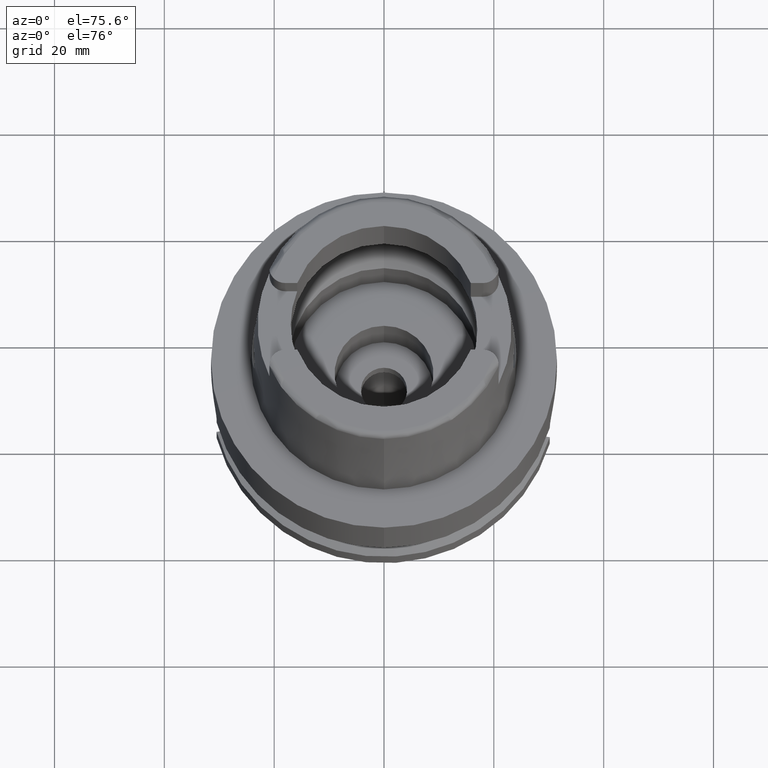
[diagram: clean part render]
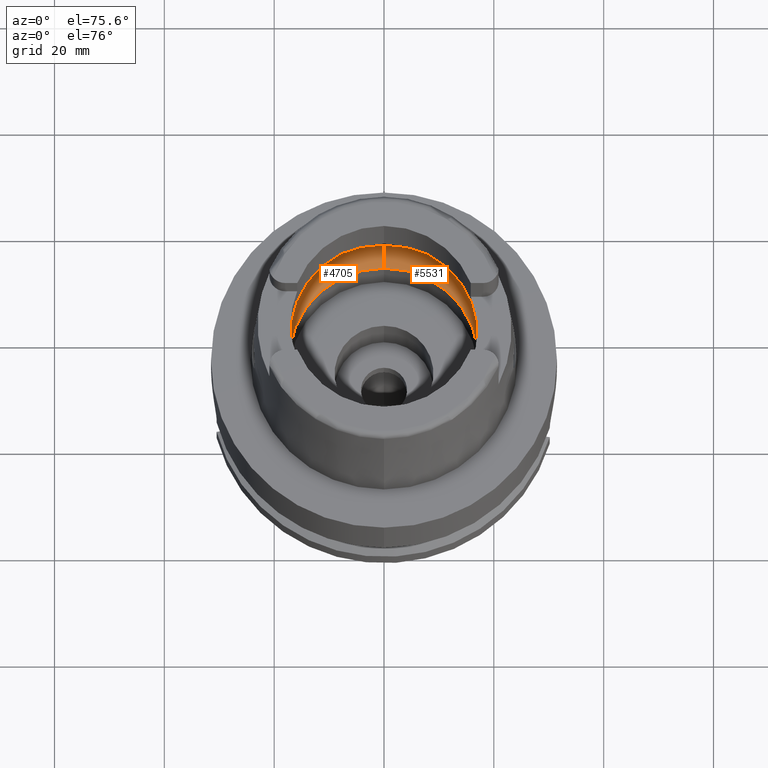
[diagram: same view with one multi-face feature highlighted, each face labeled with its STEP entity id]
A machine part, auxiliary view. The highlighted faces form ONE feature: a constant-radius fillet chain: 2 tangent blend faces with common blend radius 8 mm. The faces share edges in the B-rep.
Their STEP definitions:
[1] entity #4705 (Torus):
#5 = ORIENTED_EDGE ( 'NONE', *, *, #3868, .F. ) ;
#110 = CARTESIAN_POINT ( 'NONE',  ( -19.94340255865083833, 0.4848947565498933909, 5.274596189388688572 ) ) ;
#130 = VERTEX_POINT ( 'NONE', #4777 ) ;
#217 = CARTESIAN_POINT ( 'NONE',  ( -19.84575864665999845, -2.479085262491000030, 6.186348233825000875 ) ) ;
#272 = CARTESIAN_POINT ( 'NONE',  ( 0.0000000000000000000, 17.25000000000000000, 0.1500000000000999700 ) ) ;
#286 = AXIS2_PLACEMENT_3D ( 'NONE', #5358, #3645, #588 ) ;
#293 = CARTESIAN_POINT ( 'NONE',  ( -19.84575864665999845, -2.479085262491000030, 6.186348233825000875 ) ) ;
#301 = CARTESIAN_POINT ( 'NONE',  ( -19.92208718948823076, -1.429900174883156350, 5.533077591732342704 ) ) ;
#327 = ORIENTED_EDGE ( 'NONE', *, *, #2806, .F. ) ;
#383 = CIRCLE ( 'NONE', #4583, 7.999999999999992895 ) ;
#430 = DIRECTION ( 'NONE',  ( 1.000000000000000000, 0.0000000000000000000, 0.0000000000000000000 ) ) ;
#453 = AXIS2_PLACEMENT_3D ( 'NONE', #4826, #430, #4379 ) ;
#500 = CARTESIAN_POINT ( 'NONE',  ( -19.88332346670495809, 2.178368557155442531, 5.921389235933154360 ) ) ;
#526 = CARTESIAN_POINT ( 'NONE',  ( -19.93655272268687639, 0.9259470818443067408, 5.364515645285496959 ) ) ;
#588 = DIRECTION ( 'NONE',  ( 0.0000000000000000000, 1.000000000000000000, 0.0000000000000000000 ) ) ;
#591 = CARTESIAN_POINT ( 'NONE',  ( -19.94501428475999916, 0.0000000000000000000, 5.250000000000000000 ) ) ;
#632 = B_SPLINE_CURVE_WITH_KNOTS ( 'NONE', 3,
 ( #217, #1971, #3704, #5067, #4594, #2826, #4622, #301, #4648, #1994, #5094, #2405, #4171, #3759, #1584 ),
 .UNSPECIFIED., .F., .F.,
 ( 4, 2, 2, 1, 1, 1, 2, 2, 4 ),
 ( 0.0000000000000000000, 0.2499999999999957812, 0.3749999999999935607, 0.4374999999999926725, 0.4687499999999921729, 0.4843749999999920064, 0.4921874999999919509, 0.4999999999999920064, 1.000000000000000000 ),
 .UNSPECIFIED. ) ;
#640 = FACE_OUTER_BOUND ( 'NONE', #997, .T. ) ;
#651 = CARTESIAN_POINT ( 'NONE',  ( 0.0000000000000000000, -12.00000000000000000, 6.186348233825000875 ) ) ;
#703 = EDGE_CURVE ( 'NONE', #1993, #130, #383, .T. ) ;
#740 = CIRCLE ( 'NONE', #453, 7.999999999999992895 ) ;
#778 = CARTESIAN_POINT ( 'NONE',  ( 0.0000000000000000000, 0.0000000000000000000, 6.186348233825000875 ) ) ;
#993 = CARTESIAN_POINT ( 'NONE',  ( -19.84575864665999845, 2.479085262489999941, 6.186348233825000875 ) ) ;
#997 = EDGE_LOOP ( 'NONE', ( #1836, #2245, #327, #3734, #5, #1362, #5246 ) ) ;
#1056 = CARTESIAN_POINT ( 'NONE',  ( -19.92840595086944688, 1.244192535815689116, 5.462252019518305524 ) ) ;
#1177 = DIRECTION ( 'NONE',  ( 0.0000000000000000000, 0.0000000000000000000, 1.000000000000000000 ) ) ;
#1362 = ORIENTED_EDGE ( 'NONE', *, *, #5563, .F. ) ;
#1385 = CIRCLE ( 'NONE', #2648, 20.00000000000001421 ) ;
#1419 = CARTESIAN_POINT ( 'NONE',  ( -19.92591906827003001, 1.321585501799986462, 5.490587994735173893 ) ) ;
#1584 = CARTESIAN_POINT ( 'NONE',  ( -19.94501428475999916, 0.0000000000000000000, 5.250000000000000000 ) ) ;
#1742 = CARTESIAN_POINT ( 'NONE',  ( 0.0000000000000000000, 20.00000000000000000, 6.186348233825000875 ) ) ;
#1836 = ORIENTED_EDGE ( 'NONE', *, *, #5118, .F. ) ;
#1886 = CARTESIAN_POINT ( 'NONE',  ( -19.93856738032333809, 0.8183990517462441661, 5.338642722792194206 ) ) ;
#1971 = CARTESIAN_POINT ( 'NONE',  ( -19.86454009060478398, -2.328734643576319652, 6.053875549024845704 ) ) ;
#1993 = VERTEX_POINT ( 'NONE', #3265 ) ;
#1994 = CARTESIAN_POINT ( 'NONE',  ( -19.92467852483092017, -1.357963622241911139, 5.504503570019525505 ) ) ;
#2005 = CARTESIAN_POINT ( 'NONE',  ( -19.84575864665999845, 2.479085262489999941, 6.186348233825000875 ) ) ;
#2116 = EDGE_CURVE ( 'NONE', #2798, #2685, #632, .T. ) ;
#2245 = ORIENTED_EDGE ( 'NONE', *, *, #703, .F. ) ;
#2315 = DIRECTION ( 'NONE',  ( -0.9922879323327794543, 0.1239542631244973381, 0.0000000000000000000 ) ) ;
#2331 = CARTESIAN_POINT ( 'NONE',  ( -19.92706179647762355, 1.286754988675302247, 5.477635449957110048 ) ) ;
#2405 = CARTESIAN_POINT ( 'NONE',  ( -19.92547252417883641, -1.334867513091082314, 5.495621353218018257 ) ) ;
#2465 = AXIS2_PLACEMENT_3D ( 'NONE', #778, #2869, #4574 ) ;
#2648 = AXIS2_PLACEMENT_3D ( 'NONE', #4501, #4042, #2315 ) ;
#2685 = VERTEX_POINT ( 'NONE', #3341 ) ;
#2798 = VERTEX_POINT ( 'NONE', #293 ) ;
#2806 = EDGE_CURVE ( 'NONE', #4703, #1993, #2815, .T. ) ;
#2815 = CIRCLE ( 'NONE', #3091, 17.25000000000000000 ) ;
#2826 = CARTESIAN_POINT ( 'NONE',  ( -19.91448717745985775, -1.610408095139941542, 5.612876396282293179 ) ) ;
#2869 = DIRECTION ( 'NONE',  ( 0.0000000000000000000, 0.0000000000000000000, -1.000000000000000000 ) ) ;
#2877 = EDGE_CURVE ( 'NONE', #4703, #4343, #740, .T. ) ;
#3091 = AXIS2_PLACEMENT_3D ( 'NONE', #4189, #1177, #3720 ) ;
#3171 = B_SPLINE_CURVE_WITH_KNOTS ( 'NONE', 3,
 ( #591, #4025, #110, #1886, #526, #4902, #4433, #1056, #2331, #3218, #3592, #1419, #3185, #500, #993 ),
 .UNSPECIFIED., .F., .F.,
 ( 4, 2, 2, 1, 1, 1, 2, 2, 4 ),
 ( 0.0000000000000000000, 0.2499999999999942268, 0.3749999999999913958, 0.4374999999999900635, 0.4687499999999894529, 0.4843749999999892863, 0.4921874999999892308, 0.4999999999999892308, 1.000000000000000000 ),
 .UNSPECIFIED. ) ;
#3185 = CARTESIAN_POINT ( 'NONE',  ( -19.90996177496829489, 1.795767083468379210, 5.670284047755099088 ) ) ;
#3218 = CARTESIAN_POINT ( 'NONE',  ( -19.92647156474819425, 1.304855687904770578, 5.484336066838738866 ) ) ;
#3265 = CARTESIAN_POINT ( 'NONE',  ( 0.0000000000000000000, -17.25000000000000000, 0.1500000000000999700 ) ) ;
#3341 = CARTESIAN_POINT ( 'NONE',  ( -19.94501428475999916, 0.0000000000000000000, 5.250000000000000000 ) ) ;
#3580 = TOROIDAL_SURFACE ( 'NONE', #286, 12.00000000000000000, 8.000000000000000000 ) ;
#3592 = CARTESIAN_POINT ( 'NONE',  ( -19.92607492902601507, 1.316891584246879576, 5.488826718527257675 ) ) ;
#3645 = DIRECTION ( 'NONE',  ( 0.0000000000000000000, 0.0000000000000000000, 1.000000000000000000 ) ) ;
#3704 = CARTESIAN_POINT ( 'NONE',  ( -19.88059042415784816, -2.158397635262351066, 5.925190505596781065 ) ) ;
#3720 = DIRECTION ( 'NONE',  ( 0.0000000000000000000, 1.000000000000000000, 0.0000000000000000000 ) ) ;
#3734 = ORIENTED_EDGE ( 'NONE', *, *, #2877, .T. ) ;
#3759 = CARTESIAN_POINT ( 'NONE',  ( -19.94501428475999916, -0.4959087842382808309, 5.249999999999998224 ) ) ;
#3868 = EDGE_CURVE ( 'NONE', #4308, #4343, #1385, .T. ) ;
#3937 = CIRCLE ( 'NONE', #2465, 20.00000000000000000 ) ;
#4025 = CARTESIAN_POINT ( 'NONE',  ( -19.94501428475999916, 0.2479290550739760568, 5.249999999999999112 ) ) ;
#4042 = DIRECTION ( 'NONE',  ( 0.0000000000000000000, 0.0000000000000000000, -1.000000000000000000 ) ) ;
#4063 = DIRECTION ( 'NONE',  ( 0.0000000000000000000, -0.6562500000000006661, -0.7545435292281016393 ) ) ;
#4171 = CARTESIAN_POINT ( 'NONE',  ( -19.93856751838270824, -0.9457802407118157673, 5.348172554885747054 ) ) ;
#4189 = CARTESIAN_POINT ( 'NONE',  ( 0.0000000000000000000, 0.0000000000000000000, 0.1500000000000999700 ) ) ;
#4308 = VERTEX_POINT ( 'NONE', #2005 ) ;
#4343 = VERTEX_POINT ( 'NONE', #1742 ) ;
#4379 = DIRECTION ( 'NONE',  ( 0.0000000000000000000, 0.6562500000000006661, -0.7545435292281016393 ) ) ;
#4433 = CARTESIAN_POINT ( 'NONE',  ( -19.93096204774570879, 1.157762075072081620, 5.432521242665883321 ) ) ;
#4501 = CARTESIAN_POINT ( 'NONE',  ( 0.0000000000000000000, 0.0000000000000000000, 6.186348233825000875 ) ) ;
#4521 = DIRECTION ( 'NONE',  ( -1.000000000000000000, 0.0000000000000000000, 0.0000000000000000000 ) ) ;
#4574 = DIRECTION ( 'NONE',  ( 0.0000000000000000000, -1.000000000000000000, 0.0000000000000000000 ) ) ;
#4583 = AXIS2_PLACEMENT_3D ( 'NONE', #651, #4521, #4063 ) ;
#4594 = CARTESIAN_POINT ( 'NONE',  ( -19.90654609288262122, -1.769936306168619966, 5.691842260241858575 ) ) ;
#4622 = CARTESIAN_POINT ( 'NONE',  ( -19.91820167814924503, -1.528670811425639542, 5.574773783465068355 ) ) ;
#4648 = CARTESIAN_POINT ( 'NONE',  ( -19.92391792695806529, -1.379670552742549017, 5.512962522875360705 ) ) ;
#4703 = VERTEX_POINT ( 'NONE', #272 ) ;
#4705 = ADVANCED_FACE ( 'NONE', ( #640 ), #3580, .F. ) ;
#4777 = CARTESIAN_POINT ( 'NONE',  ( 0.0000000000000000000, -20.00000000000000000, 6.186348233825000875 ) ) ;
#4826 = CARTESIAN_POINT ( 'NONE',  ( 0.0000000000000000000, 12.00000000000000000, 6.186348233825000875 ) ) ;
#4902 = CARTESIAN_POINT ( 'NONE',  ( -19.93292633894125032, 1.081457122330341747, 5.408919853929954336 ) ) ;
#5067 = CARTESIAN_POINT ( 'NONE',  ( -19.90056925889987127, -1.871018165099524122, 5.748162139564427342 ) ) ;
#5094 = CARTESIAN_POINT ( 'NONE',  ( -19.92518025587951058, -1.343452463015866627, 5.498900748199903710 ) ) ;
#5118 = EDGE_CURVE ( 'NONE', #130, #2798, #3937, .T. ) ;
#5246 = ORIENTED_EDGE ( 'NONE', *, *, #2116, .F. ) ;
#5358 = CARTESIAN_POINT ( 'NONE',  ( 0.0000000000000000000, 0.0000000000000000000, 6.186348233825000875 ) ) ;
#5563 = EDGE_CURVE ( 'NONE', #2685, #4308, #3171, .T. ) ;
[2] entity #5531 (Torus):
#130 = VERTEX_POINT ( 'NONE', #4777 ) ;
#160 = CARTESIAN_POINT ( 'NONE',  ( 19.92518041982365418, 1.343450277255565872, 5.498899909475031045 ) ) ;
#272 = CARTESIAN_POINT ( 'NONE',  ( 0.0000000000000000000, 17.25000000000000000, 0.1500000000000999700 ) ) ;
#303 = CARTESIAN_POINT ( 'NONE',  ( 19.90996156375606674, -1.795769246985481571, 5.670285195732481576 ) ) ;
#383 = CIRCLE ( 'NONE', #4583, 7.999999999999992895 ) ;
#430 = DIRECTION ( 'NONE',  ( 1.000000000000000000, 0.0000000000000000000, 0.0000000000000000000 ) ) ;
#447 = DIRECTION ( 'NONE',  ( 0.0000000000000000000, 0.0000000000000000000, -1.000000000000000000 ) ) ;
#453 = AXIS2_PLACEMENT_3D ( 'NONE', #4826, #430, #4379 ) ;
#550 = CARTESIAN_POINT ( 'NONE',  ( 19.92208736014775994, 1.429898011590186924, 5.533076699460339754 ) ) ;
#613 = CARTESIAN_POINT ( 'NONE',  ( 19.92467869001661995, 1.357961439187409525, 5.504502721927527986 ) ) ;
#651 = CARTESIAN_POINT ( 'NONE',  ( 0.0000000000000000000, -12.00000000000000000, 6.186348233825000875 ) ) ;
#703 = EDGE_CURVE ( 'NONE', #1993, #130, #383, .T. ) ;
#740 = CIRCLE ( 'NONE', #453, 7.999999999999992895 ) ;
#804 = CARTESIAN_POINT ( 'NONE',  ( 0.0000000000000000000, 0.0000000000000000000, 0.1500000000000999700 ) ) ;
#816 = CARTESIAN_POINT ( 'NONE',  ( 19.84575864665999845, -2.479085262491000030, 6.186348233825000875 ) ) ;
#912 = EDGE_LOOP ( 'NONE', ( #959, #5071, #3892, #3708, #987, #4240, #5440 ) ) ;
#959 = ORIENTED_EDGE ( 'NONE', *, *, #2060, .F. ) ;
#969 = DIRECTION ( 'NONE',  ( 0.0000000000000000000, 0.0000000000000000000, 1.000000000000000000 ) ) ;
#987 = ORIENTED_EDGE ( 'NONE', *, *, #703, .T. ) ;
#1017 = CARTESIAN_POINT ( 'NONE',  ( 19.93856757259323231, 0.9457801821284733679, 5.348172806034195759 ) ) ;
#1076 = CARTESIAN_POINT ( 'NONE',  ( 19.84575864665999845, 2.479085262491000030, 6.186348233825000875 ) ) ;
#1136 = CARTESIAN_POINT ( 'NONE',  ( 19.93655264990096398, -0.9259474478404787767, 5.364515726543497287 ) ) ;
#1258 = DIRECTION ( 'NONE',  ( 0.0000000000000000000, -1.000000000000000000, 0.0000000000000000000 ) ) ;
#1378 = TOROIDAL_SURFACE ( 'NONE', #3941, 12.00000000000000000, 8.000000000000000000 ) ;
#1414 = CARTESIAN_POINT ( 'NONE',  ( 19.90056942649606597, 1.871016442818389525, 5.748161141865908874 ) ) ;
#1461 = VERTEX_POINT ( 'NONE', #4102 ) ;
#1742 = CARTESIAN_POINT ( 'NONE',  ( 0.0000000000000000000, 20.00000000000000000, 6.186348233825000875 ) ) ;
#1881 = CARTESIAN_POINT ( 'NONE',  ( 19.90654626797081761, 1.769934426146181128, 5.691841251131339874 ) ) ;
#1993 = VERTEX_POINT ( 'NONE', #3265 ) ;
#2020 = CARTESIAN_POINT ( 'NONE',  ( 19.94340254478684926, -0.4848942647184917298, 5.274596102033371814 ) ) ;
#2060 = EDGE_CURVE ( 'NONE', #1461, #3451, #4534, .T. ) ;
#2074 = CARTESIAN_POINT ( 'NONE',  ( 0.0000000000000000000, 0.0000000000000000000, 6.186348233825000875 ) ) ;
#2076 = CARTESIAN_POINT ( 'NONE',  ( 19.92840580800542583, -1.244194224745405863, 5.462252611686061243 ) ) ;
#2110 = AXIS2_PLACEMENT_3D ( 'NONE', #4434, #447, #4402 ) ;
#2130 = CARTESIAN_POINT ( 'NONE',  ( 19.88332331094866490, -2.178369804041490276, 5.921390334554123669 ) ) ;
#2156 = EDGE_CURVE ( 'NONE', #4343, #1461, #2463, .T. ) ;
#2295 = CARTESIAN_POINT ( 'NONE',  ( 19.92391809393505397, 1.379668374353000937, 5.512961660982391265 ) ) ;
#2300 = FACE_OUTER_BOUND ( 'NONE', #912, .T. ) ;
#2383 = AXIS2_PLACEMENT_3D ( 'NONE', #804, #5590, #1258 ) ;
#2463 = CIRCLE ( 'NONE', #3380, 20.00000000000000000 ) ;
#2487 = CARTESIAN_POINT ( 'NONE',  ( 19.94501428475999560, -0.2479285940720863946, 5.249999999999998224 ) ) ;
#2665 = DIRECTION ( 'NONE',  ( 0.0000000000000000000, 1.000000000000000000, 0.0000000000000000000 ) ) ;
#2877 = EDGE_CURVE ( 'NONE', #4703, #4343, #740, .T. ) ;
#2887 = CARTESIAN_POINT ( 'NONE',  ( 19.93856732486741024, -0.8183991276165779594, 5.338642733814154440 ) ) ;
#2941 = DIRECTION ( 'NONE',  ( 0.0000000000000000000, 0.0000000000000000000, -1.000000000000000000 ) ) ;
#3155 = CARTESIAN_POINT ( 'NONE',  ( 19.94501428475999560, 0.4959095983523816309, 5.249999999999999112 ) ) ;
#3265 = CARTESIAN_POINT ( 'NONE',  ( 0.0000000000000000000, -17.25000000000000000, 0.1500000000000999700 ) ) ;
#3293 = CARTESIAN_POINT ( 'NONE',  ( 19.94501428475999916, 0.0000000000000000000, 5.250000000000000000 ) ) ;
#3324 = CARTESIAN_POINT ( 'NONE',  ( 19.84575864665999845, -2.479085262491000030, 6.186348233825000875 ) ) ;
#3350 = CARTESIAN_POINT ( 'NONE',  ( 19.93292623496137494, -1.081458060797942489, 5.408920133523466234 ) ) ;
#3380 = AXIS2_PLACEMENT_3D ( 'NONE', #2074, #2941, #3841 ) ;
#3422 = VERTEX_POINT ( 'NONE', #816 ) ;
#3451 = VERTEX_POINT ( 'NONE', #3293 ) ;
#3465 = EDGE_CURVE ( 'NONE', #3451, #3422, #3606, .T. ) ;
#3586 = CARTESIAN_POINT ( 'NONE',  ( 19.88059055109615159, 2.158396495719459462, 5.925189677144884648 ) ) ;
#3606 = B_SPLINE_CURVE_WITH_KNOTS ( 'NONE', 3,
 ( #4304, #2487, #2020, #2887, #1136, #3350, #3761, #2076, #3819, #4708, #5493, #3792, #303, #2130, #3324 ),
 .UNSPECIFIED., .F., .F.,
 ( 4, 2, 2, 1, 1, 1, 2, 2, 4 ),
 ( 0.0000000000000000000, 0.2499999999999947820, 0.3749999999999921174, 0.4374999999999906186, 0.4687499999999900080, 0.4843749999999897859, 0.4921874999999896194, 0.4999999999999894529, 1.000000000000000000 ),
 .UNSPECIFIED. ) ;
#3674 = CARTESIAN_POINT ( 'NONE',  ( 19.91448735469504427, 1.610406046188481932, 5.612875421313382240 ) ) ;
#3708 = ORIENTED_EDGE ( 'NONE', *, *, #5363, .F. ) ;
#3761 = CARTESIAN_POINT ( 'NONE',  ( 19.93096192686909518, -1.157763334012747114, 5.432521644578194753 ) ) ;
#3792 = CARTESIAN_POINT ( 'NONE',  ( 19.92591890260291621, -1.321587656400195598, 5.490588806117743026 ) ) ;
#3819 = CARTESIAN_POINT ( 'NONE',  ( 19.92706164205126385, -1.286756906106516940, 5.477636149942417987 ) ) ;
#3841 = DIRECTION ( 'NONE',  ( 0.0000000000000000000, 1.000000000000000000, 0.0000000000000000000 ) ) ;
#3892 = ORIENTED_EDGE ( 'NONE', *, *, #2877, .F. ) ;
#3941 = AXIS2_PLACEMENT_3D ( 'NONE', #4455, #969, #2665 ) ;
#4022 = CARTESIAN_POINT ( 'NONE',  ( 19.86454016619522989, 2.328734038445912979, 6.053875015849456531 ) ) ;
#4063 = DIRECTION ( 'NONE',  ( 0.0000000000000000000, -0.6562500000000006661, -0.7545435292281016393 ) ) ;
#4102 = CARTESIAN_POINT ( 'NONE',  ( 19.84575864665999845, 2.479085262491000030, 6.186348233825000875 ) ) ;
#4143 = CIRCLE ( 'NONE', #2110, 20.00000000000001421 ) ;
#4227 = CIRCLE ( 'NONE', #2383, 17.25000000000000000 ) ;
#4240 = ORIENTED_EDGE ( 'NONE', *, *, #4478, .F. ) ;
#4304 = CARTESIAN_POINT ( 'NONE',  ( 19.94501428475999916, 0.0000000000000000000, 5.250000000000000000 ) ) ;
#4343 = VERTEX_POINT ( 'NONE', #1742 ) ;
#4379 = DIRECTION ( 'NONE',  ( 0.0000000000000000000, 0.6562500000000006661, -0.7545435292281016393 ) ) ;
#4402 = DIRECTION ( 'NONE',  ( 0.9922879323327794543, -0.1239542631244973381, 0.0000000000000000000 ) ) ;
#4434 = CARTESIAN_POINT ( 'NONE',  ( 0.0000000000000000000, 0.0000000000000000000, 6.186348233825000875 ) ) ;
#4455 = CARTESIAN_POINT ( 'NONE',  ( 0.0000000000000000000, 0.0000000000000000000, 6.186348233825000875 ) ) ;
#4478 = EDGE_CURVE ( 'NONE', #3422, #130, #4143, .T. ) ;
#4479 = CARTESIAN_POINT ( 'NONE',  ( 19.91820185418519884, 1.528668694906667236, 5.574772838317966439 ) ) ;
#4521 = DIRECTION ( 'NONE',  ( -1.000000000000000000, 0.0000000000000000000, 0.0000000000000000000 ) ) ;
#4534 = B_SPLINE_CURVE_WITH_KNOTS ( 'NONE', 3,
 ( #1076, #4022, #3586, #1414, #1881, #3674, #4479, #550, #2295, #613, #160, #5412, #1017, #3155, #4899 ),
 .UNSPECIFIED., .F., .F.,
 ( 4, 2, 2, 1, 1, 1, 2, 2, 4 ),
 ( 0.0000000000000000000, 0.2500000000000033862, 0.3750000000000049405, 0.4375000000000056621, 0.4687500000000057176, 0.4843750000000056621, 0.4921875000000054956, 0.5000000000000053291, 1.000000000000000000 ),
 .UNSPECIFIED. ) ;
#4583 = AXIS2_PLACEMENT_3D ( 'NONE', #651, #4521, #4063 ) ;
#4703 = VERTEX_POINT ( 'NONE', #272 ) ;
#4708 = CARTESIAN_POINT ( 'NONE',  ( 19.92647140524467630, -1.304857706103421222, 5.484336815834931045 ) ) ;
#4777 = CARTESIAN_POINT ( 'NONE',  ( 0.0000000000000000000, -20.00000000000000000, 6.186348233825000875 ) ) ;
#4826 = CARTESIAN_POINT ( 'NONE',  ( 0.0000000000000000000, 12.00000000000000000, 6.186348233825000875 ) ) ;
#4899 = CARTESIAN_POINT ( 'NONE',  ( 19.94501428475999916, 0.0000000000000000000, 5.250000000000000000 ) ) ;
#5071 = ORIENTED_EDGE ( 'NONE', *, *, #2156, .F. ) ;
#5363 = EDGE_CURVE ( 'NONE', #1993, #4703, #4227, .T. ) ;
#5412 = CARTESIAN_POINT ( 'NONE',  ( 19.92547268850448816, 1.334865291962832767, 5.495620507227335416 ) ) ;
#5440 = ORIENTED_EDGE ( 'NONE', *, *, #3465, .F. ) ;
#5493 = CARTESIAN_POINT ( 'NONE',  ( 19.92607476611066630, -1.316893670248203696, 5.488827500829480677 ) ) ;
#5531 = ADVANCED_FACE ( 'NONE', ( #2300 ), #1378, .F. ) ;
#5590 = DIRECTION ( 'NONE',  ( 0.0000000000000000000, 0.0000000000000000000, 1.000000000000000000 ) ) ;